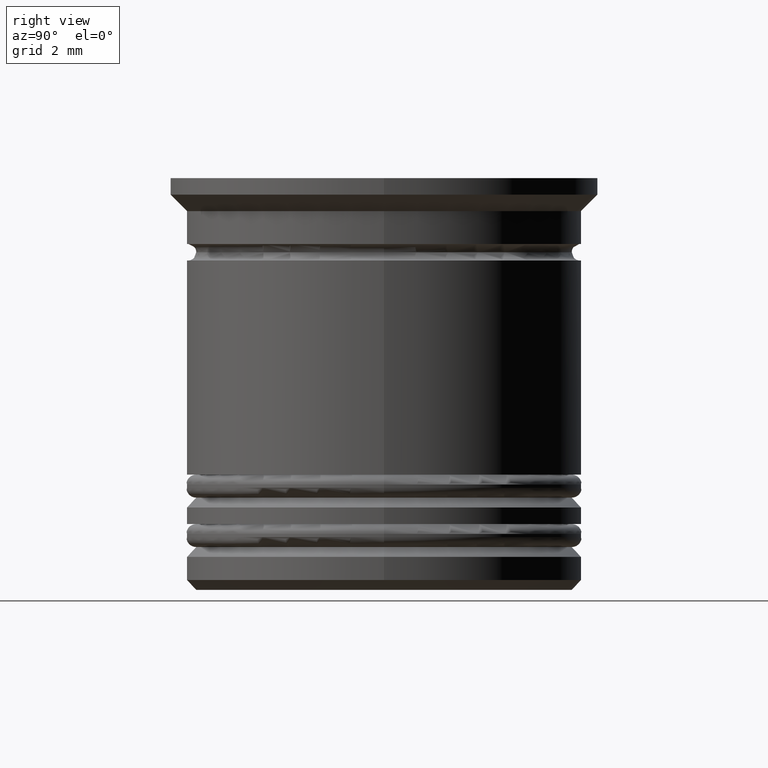
[diagram: clean part render]
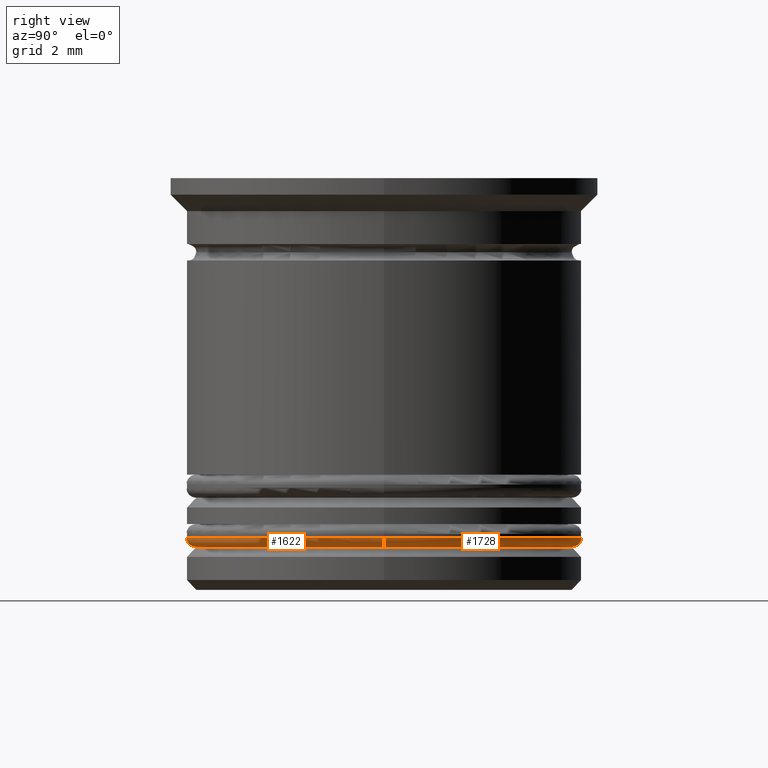
[diagram: same view with one multi-face feature highlighted, each face labeled with its STEP entity id]
A machine part, right view. The highlighted faces form ONE feature: a constant-radius fillet chain: 2 tangent blend faces with common blend radius 0.3 mm. The faces share edges in the B-rep.
Their STEP definitions:
[1] entity #1622 (Torus):
#108 = FACE_OUTER_BOUND ( 'NONE', #112, .T. ) ;
#112 = EDGE_LOOP ( 'NONE', ( #1172, #442, #544, #1528 ) ) ;
#164 = DIRECTION ( 'NONE',  ( 0.000000000000000000, -1.000000000000000000, 0.000000000000000000 ) ) ;
#173 = DIRECTION ( 'NONE',  ( -1.000000000000000000, 1.224646799147353207E-16, 0.000000000000000000 ) ) ;
#230 = TOROIDAL_SURFACE ( 'NONE', #1607, 5.700000000000002842, 0.2999999999999999889 ) ;
#272 = EDGE_CURVE ( 'NONE', #1394, #1169, #747, .T. ) ;
#341 = DIRECTION ( 'NONE',  ( 1.224646799147353207E-16, 1.000000000000000000, -0.000000000000000000 ) ) ;
#419 = CARTESIAN_POINT ( 'NONE',  ( 0.000000000000000000, 0.000000000000000000, -10.90000000000000391 ) ) ;
#442 = ORIENTED_EDGE ( 'NONE', *, *, #858, .F. ) ;
#480 = VERTEX_POINT ( 'NONE', #1722 ) ;
#506 = EDGE_CURVE ( 'NONE', #1363, #1394, #1969, .T. ) ;
#544 = ORIENTED_EDGE ( 'NONE', *, *, #1124, .T. ) ;
#551 = DIRECTION ( 'NONE',  ( 0.000000000000000000, 0.000000000000000000, 1.000000000000000000 ) ) ;
#661 = DIRECTION ( 'NONE',  ( -0.000000000000000000, -0.000000000000000000, -1.000000000000000000 ) ) ;
#747 = CIRCLE ( 'NONE', #958, 6.000000000000002665 ) ;
#858 = EDGE_CURVE ( 'NONE', #480, #1363, #1905, .T. ) ;
#919 = CARTESIAN_POINT ( 'NONE',  ( 6.000000000000002665, 0.000000000000000000, -10.90000000000000391 ) ) ;
#958 = AXIS2_PLACEMENT_3D ( 'NONE', #1143, #551, #1294 ) ;
#1068 = DIRECTION ( 'NONE',  ( 1.000000000000000000, 0.000000000000000000, 0.000000000000000000 ) ) ;
#1069 = CARTESIAN_POINT ( 'NONE',  ( -5.700000000000002842, 6.980486755139916067E-16, -10.90000000000000391 ) ) ;
#1100 = CARTESIAN_POINT ( 'NONE',  ( 0.000000000000000000, 0.000000000000000000, -11.20000000000000462 ) ) ;
#1124 = EDGE_CURVE ( 'NONE', #480, #1169, #1973, .T. ) ;
#1143 = CARTESIAN_POINT ( 'NONE',  ( 0.000000000000000000, 0.000000000000000000, -10.90000000000000391 ) ) ;
#1169 = VERTEX_POINT ( 'NONE', #919 ) ;
#1172 = ORIENTED_EDGE ( 'NONE', *, *, #506, .F. ) ;
#1294 = DIRECTION ( 'NONE',  ( 1.000000000000000000, 0.000000000000000000, 0.000000000000000000 ) ) ;
#1349 = AXIS2_PLACEMENT_3D ( 'NONE', #1499, #164, #1361 ) ;
#1361 = DIRECTION ( 'NONE',  ( 0.000000000000000000, 0.000000000000000000, -1.000000000000000000 ) ) ;
#1363 = VERTEX_POINT ( 'NONE', #1914 ) ;
#1394 = VERTEX_POINT ( 'NONE', #1432 ) ;
#1432 = CARTESIAN_POINT ( 'NONE',  ( -6.000000000000002665, 7.347880794884122694E-16, -10.90000000000000391 ) ) ;
#1494 = DIRECTION ( 'NONE',  ( 0.000000000000000000, 0.000000000000000000, 1.000000000000000000 ) ) ;
#1499 = CARTESIAN_POINT ( 'NONE',  ( 5.700000000000002842, 0.000000000000000000, -10.90000000000000391 ) ) ;
#1528 = ORIENTED_EDGE ( 'NONE', *, *, #272, .F. ) ;
#1607 = AXIS2_PLACEMENT_3D ( 'NONE', #419, #1494, #1920 ) ;
#1622 = ADVANCED_FACE ( 'NONE', ( #108 ), #230, .T. ) ;
#1636 = AXIS2_PLACEMENT_3D ( 'NONE', #1069, #341, #173 ) ;
#1722 = CARTESIAN_POINT ( 'NONE',  ( 5.700000000000002842, 0.000000000000000000, -11.20000000000000462 ) ) ;
#1905 = CIRCLE ( 'NONE', #1942, 5.700000000000002842 ) ;
#1914 = CARTESIAN_POINT ( 'NONE',  ( -5.700000000000002842, 7.164183775012019380E-16, -11.20000000000000462 ) ) ;
#1920 = DIRECTION ( 'NONE',  ( 1.000000000000000000, 0.000000000000000000, 0.000000000000000000 ) ) ;
#1942 = AXIS2_PLACEMENT_3D ( 'NONE', #1100, #661, #1068 ) ;
#1969 = CIRCLE ( 'NONE', #1636, 0.2999999999999999334 ) ;
#1973 = CIRCLE ( 'NONE', #1349, 0.2999999999999999334 ) ;
[2] entity #1728 (Torus):
#164 = DIRECTION ( 'NONE',  ( 0.000000000000000000, -1.000000000000000000, 0.000000000000000000 ) ) ;
#173 = DIRECTION ( 'NONE',  ( -1.000000000000000000, 1.224646799147353207E-16, 0.000000000000000000 ) ) ;
#191 = ORIENTED_EDGE ( 'NONE', *, *, #1124, .F. ) ;
#234 = ORIENTED_EDGE ( 'NONE', *, *, #506, .T. ) ;
#266 = AXIS2_PLACEMENT_3D ( 'NONE', #956, #1585, #370 ) ;
#280 = DIRECTION ( 'NONE',  ( -0.000000000000000000, -0.000000000000000000, -1.000000000000000000 ) ) ;
#288 = ORIENTED_EDGE ( 'NONE', *, *, #1145, .F. ) ;
#294 = DIRECTION ( 'NONE',  ( 1.000000000000000000, 0.000000000000000000, 0.000000000000000000 ) ) ;
#341 = DIRECTION ( 'NONE',  ( 1.224646799147353207E-16, 1.000000000000000000, -0.000000000000000000 ) ) ;
#370 = DIRECTION ( 'NONE',  ( 1.000000000000000000, 0.000000000000000000, 0.000000000000000000 ) ) ;
#468 = DIRECTION ( 'NONE',  ( 1.000000000000000000, 0.000000000000000000, 0.000000000000000000 ) ) ;
#480 = VERTEX_POINT ( 'NONE', #1722 ) ;
#506 = EDGE_CURVE ( 'NONE', #1363, #1394, #1969, .T. ) ;
#722 = CIRCLE ( 'NONE', #1839, 5.700000000000002842 ) ;
#919 = CARTESIAN_POINT ( 'NONE',  ( 6.000000000000002665, 0.000000000000000000, -10.90000000000000391 ) ) ;
#931 = EDGE_CURVE ( 'NONE', #1169, #1394, #1122, .T. ) ;
#956 = CARTESIAN_POINT ( 'NONE',  ( 0.000000000000000000, 0.000000000000000000, -10.90000000000000391 ) ) ;
#1025 = AXIS2_PLACEMENT_3D ( 'NONE', #1043, #1340, #294 ) ;
#1043 = CARTESIAN_POINT ( 'NONE',  ( 0.000000000000000000, 0.000000000000000000, -10.90000000000000391 ) ) ;
#1069 = CARTESIAN_POINT ( 'NONE',  ( -5.700000000000002842, 6.980486755139916067E-16, -10.90000000000000391 ) ) ;
#1122 = CIRCLE ( 'NONE', #266, 6.000000000000002665 ) ;
#1124 = EDGE_CURVE ( 'NONE', #480, #1169, #1973, .T. ) ;
#1145 = EDGE_CURVE ( 'NONE', #1363, #480, #722, .T. ) ;
#1169 = VERTEX_POINT ( 'NONE', #919 ) ;
#1225 = CARTESIAN_POINT ( 'NONE',  ( 0.000000000000000000, 0.000000000000000000, -11.20000000000000462 ) ) ;
#1247 = ORIENTED_EDGE ( 'NONE', *, *, #931, .F. ) ;
#1340 = DIRECTION ( 'NONE',  ( 0.000000000000000000, 0.000000000000000000, 1.000000000000000000 ) ) ;
#1349 = AXIS2_PLACEMENT_3D ( 'NONE', #1499, #164, #1361 ) ;
#1361 = DIRECTION ( 'NONE',  ( 0.000000000000000000, 0.000000000000000000, -1.000000000000000000 ) ) ;
#1363 = VERTEX_POINT ( 'NONE', #1914 ) ;
#1394 = VERTEX_POINT ( 'NONE', #1432 ) ;
#1416 = TOROIDAL_SURFACE ( 'NONE', #1025, 5.700000000000002842, 0.2999999999999999889 ) ;
#1432 = CARTESIAN_POINT ( 'NONE',  ( -6.000000000000002665, 7.347880794884122694E-16, -10.90000000000000391 ) ) ;
#1499 = CARTESIAN_POINT ( 'NONE',  ( 5.700000000000002842, 0.000000000000000000, -10.90000000000000391 ) ) ;
#1585 = DIRECTION ( 'NONE',  ( 0.000000000000000000, 0.000000000000000000, 1.000000000000000000 ) ) ;
#1636 = AXIS2_PLACEMENT_3D ( 'NONE', #1069, #341, #173 ) ;
#1694 = FACE_OUTER_BOUND ( 'NONE', #1763, .T. ) ;
#1722 = CARTESIAN_POINT ( 'NONE',  ( 5.700000000000002842, 0.000000000000000000, -11.20000000000000462 ) ) ;
#1728 = ADVANCED_FACE ( 'NONE', ( #1694 ), #1416, .T. ) ;
#1763 = EDGE_LOOP ( 'NONE', ( #288, #234, #1247, #191 ) ) ;
#1839 = AXIS2_PLACEMENT_3D ( 'NONE', #1225, #280, #468 ) ;
#1914 = CARTESIAN_POINT ( 'NONE',  ( -5.700000000000002842, 7.164183775012019380E-16, -11.20000000000000462 ) ) ;
#1969 = CIRCLE ( 'NONE', #1636, 0.2999999999999999334 ) ;
#1973 = CIRCLE ( 'NONE', #1349, 0.2999999999999999334 ) ;